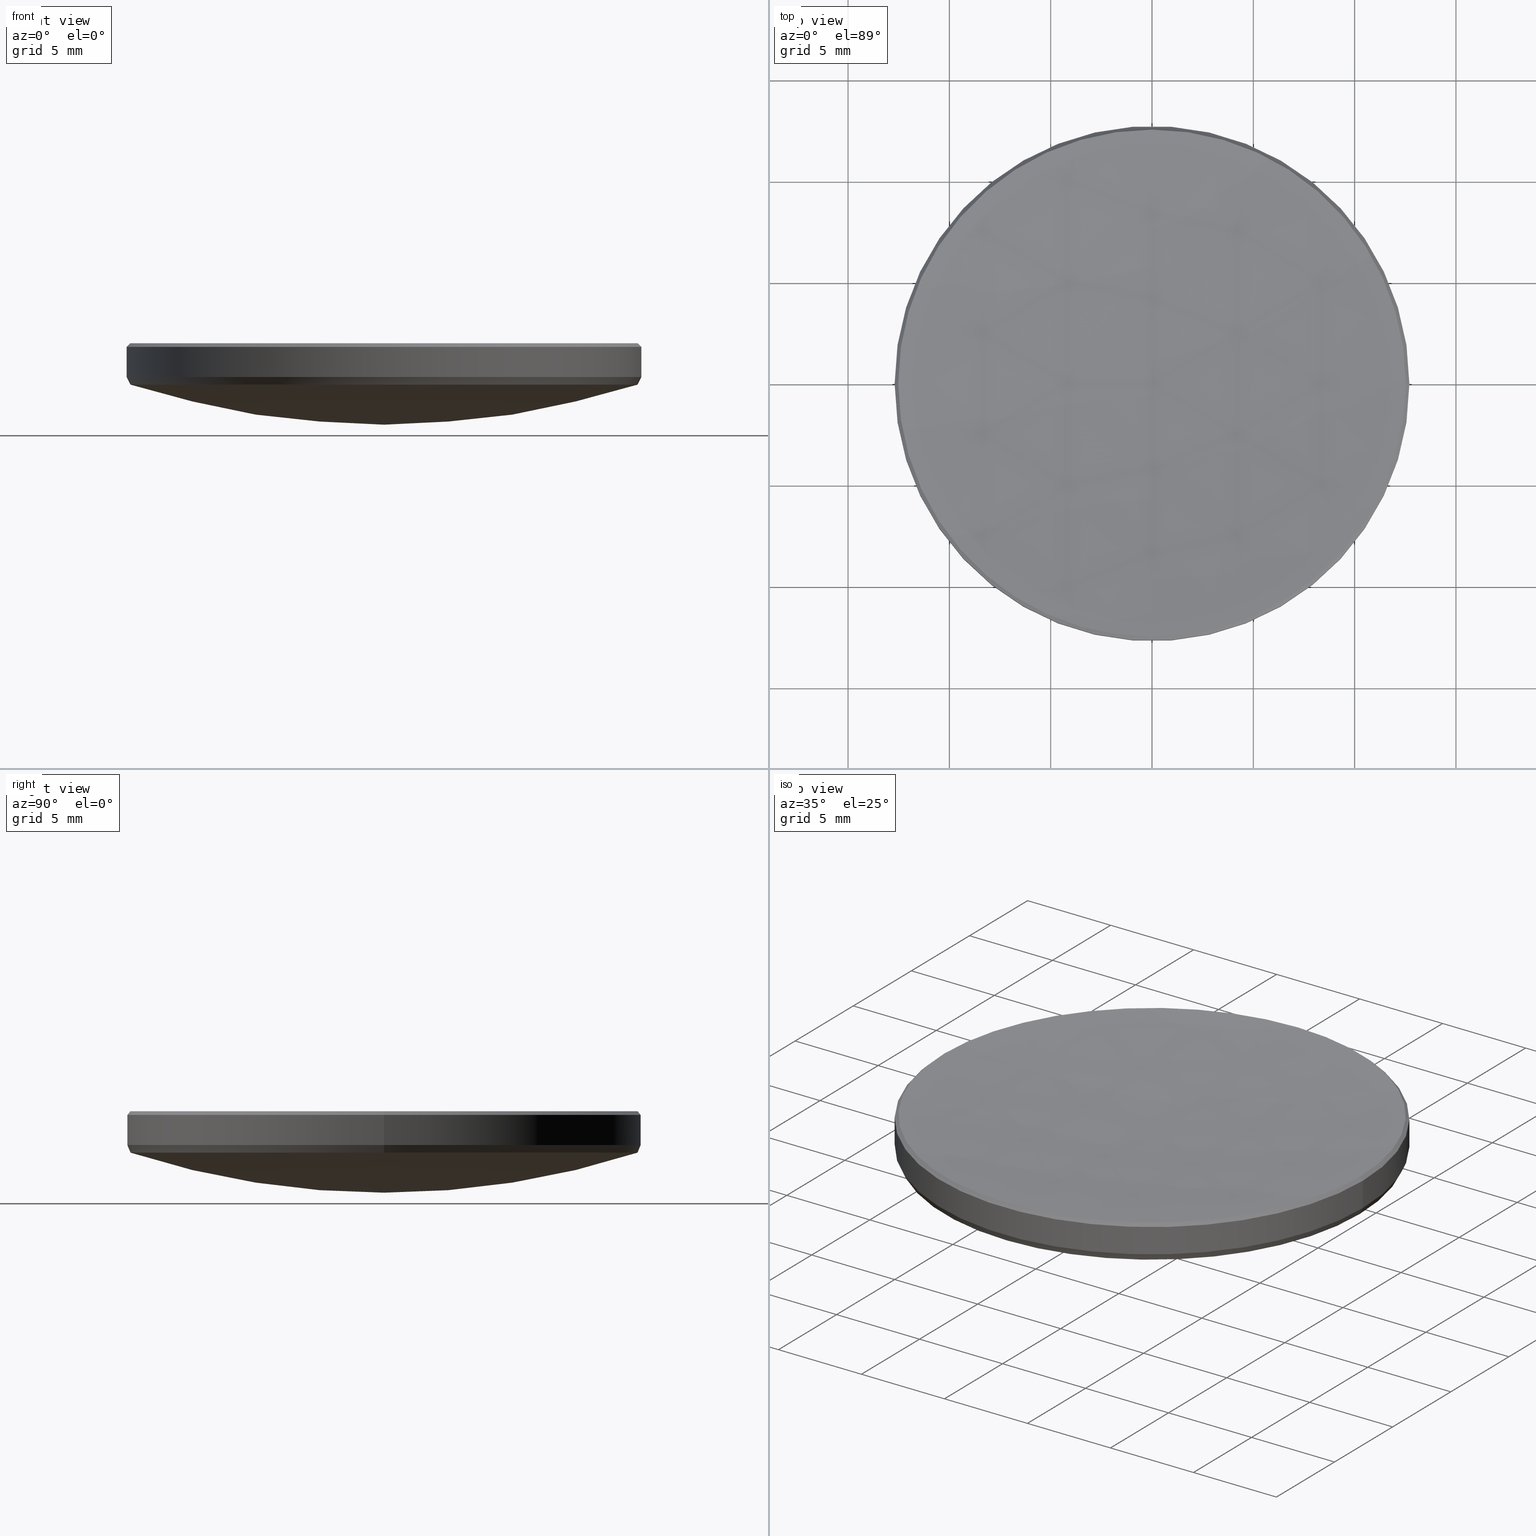
[diagram: canonical four-view strip — front | top / right | iso, engineering-drawing reading convention]
A machine part, canonical four-view strip (front | top / right | iso — engineering-drawing reading convention). The complete STEP part file that produces these views, byte-faithful:
ISO-10303-21;
HEADER;
FILE_DESCRIPTION (( 'STEP AP214' ),
    '1' );
FILE_NAME ('GLM1-025B-125-VIS.STEP',
    '2024-08-09T02:14:15',
    ( 'Windows User' ),
    ( 'P R C' ),
    'SwSTEP 2.0',
    'SolidWorks 2022',
    '' );
FILE_SCHEMA (( 'AUTOMOTIVE_DESIGN' ));
ENDSEC;

DATA;
#1 =( GEOMETRIC_REPRESENTATION_CONTEXT ( 3 ) GLOBAL_UNCERTAINTY_ASSIGNED_CONTEXT ( ( #16 ) ) GLOBAL_UNIT_ASSIGNED_CONTEXT ( ( #277, #194, #79 ) ) REPRESENTATION_CONTEXT ( 'NONE', 'WORKASPACE' ) );
#2 = AXIS2_PLACEMENT_3D ( 'NONE', #77, #32, #174 ) ;
#3 =( NAMED_UNIT ( * ) SI_UNIT ( $, .STERADIAN. ) SOLID_ANGLE_UNIT ( ) );
#4 = SPHERICAL_SURFACE ( 'NONE', #105, 40.59999999999999432 ) ;
#5 = EDGE_CURVE ( 'NONE', #307, #19, #41, .T. ) ;
#6 = LINE ( 'NONE', #237, #244 ) ;
#7 = EDGE_CURVE ( 'NONE', #19, #51, #205, .T. ) ;
#8 = CARTESIAN_POINT ( 'NONE',  ( 0.000000000000000000, 0.000000000000000000, 112.1429225148808655 ) ) ;
#9 = DIRECTION ( 'NONE',  ( 0.000000000000000000, 1.000000000000000000, 0.000000000000000000 ) ) ;
#10 = AXIS2_PLACEMENT_3D ( 'NONE', #137, #64, #87 ) ;
#11 = COLOUR_RGB ( '',1.000000000000000000, 1.000000000000000000, 1.000000000000000000 ) ;
#12 = FACE_OUTER_BOUND ( 'NONE', #300, .T. ) ;
#13 = DIRECTION ( 'NONE',  ( -1.224646799147353454E-16, -1.000000000000000000, 0.000000000000000000 ) ) ;
#14 = FILL_AREA_STYLE_COLOUR ( '', #11 ) ;
#15 = AXIS2_PLACEMENT_3D ( 'NONE', #266, #314, #13 ) ;
#16 = UNCERTAINTY_MEASURE_WITH_UNIT (LENGTH_MEASURE( 1.000000000000000082E-05 ), #277, 'distance_accuracy_value', 'NONE');
#17 = ORIENTED_EDGE ( 'NONE', *, *, #90, .T. ) ;
#18 = AXIS2_PLACEMENT_3D ( 'NONE', #132, #101, #285 ) ;
#19 = VERTEX_POINT ( 'NONE', #154 ) ;
#20 = ORIENTED_EDGE ( 'NONE', *, *, #243, .T. ) ;
#21 = CONICAL_SURFACE ( 'NONE', #323, 12.52123640383887881, 0.7853981633974531640 ) ;
#22 = ORIENTED_EDGE ( 'NONE', *, *, #269, .T. ) ;
#23 = EDGE_CURVE ( 'NONE', #273, #49, #72, .T. ) ;
#24 = FACE_OUTER_BOUND ( 'NONE', #45, .T. ) ;
#25 = EDGE_LOOP ( 'NONE', ( #217, #131, #218, #331, #202 ) ) ;
#26 = DIRECTION ( 'NONE',  ( 1.000000000000000000, 0.000000000000000000, 0.000000000000000000 ) ) ;
#27 = DIRECTION ( 'NONE',  ( -0.000000000000000000, -0.000000000000000000, 1.000000000000000000 ) ) ;
#28 = CIRCLE ( 'NONE', #225, 106.9000000000000057 ) ;
#29 = APPLICATION_PROTOCOL_DEFINITION ( 'draft international standard', 'automotive_design', 1998, #170 ) ;
#30 = CIRCLE ( 'NONE', #272, 12.52123640383887704 ) ;
#31 = CARTESIAN_POINT ( 'NONE',  ( 0.000000000000000000, 0.000000000000000000, 5.799999999999999822 ) ) ;
#32 = DIRECTION ( 'NONE',  ( 0.000000000000000000, 0.000000000000000000, -1.000000000000000000 ) ) ;
#33 =( NAMED_UNIT ( * ) PLANE_ANGLE_UNIT ( ) SI_UNIT ( $, .RADIAN. ) );
#34 = ADVANCED_FACE ( 'NONE', ( #127 ), #283, .T. ) ;
#35 = DIRECTION ( 'NONE',  ( -0.000000000000000000, -0.000000000000000000, -1.000000000000000000 ) ) ;
#36 = FILL_AREA_STYLE ('',( #263 ) ) ;
#37 = LINE ( 'NONE', #292, #286 ) ;
#38 = DIRECTION ( 'NONE',  ( -1.000000000000000000, 0.000000000000000000, 0.000000000000000000 ) ) ;
#39 = DIRECTION ( 'NONE',  ( 1.000000000000000000, 0.000000000000000000, 0.000000000000000000 ) ) ;
#40 = CARTESIAN_POINT ( 'NONE',  ( 0.000000000000000000, 0.000000000000000000, 5.978763596161104310 ) ) ;
#41 = LINE ( 'NONE', #121, #312 ) ;
#42 = AXIS2_PLACEMENT_3D ( 'NONE', #267, #235, #69 ) ;
#43 = ADVANCED_FACE ( 'NONE', ( #24 ), #21, .T. ) ;
#44 = ORIENTED_EDGE ( 'NONE', *, *, #149, .F. ) ;
#45 = EDGE_LOOP ( 'NONE', ( #147, #311, #104, #270, #44 ) ) ;
#46 = APPLICATION_PROTOCOL_DEFINITION ( 'draft international standard', 'automotive_design', 1998, #75 ) ;
#47 = STYLED_ITEM ( 'NONE', ( #96 ), #76 ) ;
#48 = COLOUR_RGB ( '',1.000000000000000000, 1.000000000000000000, 1.000000000000000000 ) ;
#49 = VERTEX_POINT ( 'NONE', #306 ) ;
#50 = EDGE_CURVE ( 'NONE', #71, #295, #179, .T. ) ;
#51 = VERTEX_POINT ( 'NONE', #129 ) ;
#52 = CARTESIAN_POINT ( 'NONE',  ( 0.000000000000000000, 0.000000000000000000, 3.938057364562333351 ) ) ;
#53 = CARTESIAN_POINT ( 'NONE',  ( 0.000000000000000000, 0.000000000000000000, 5.978763596161104310 ) ) ;
#54 = VERTEX_POINT ( 'NONE', #175 ) ;
#55 = CARTESIAN_POINT ( 'NONE',  ( 0.000000000000000000, 0.000000000000000000, 0.000000000000000000 ) ) ;
#56 = CARTESIAN_POINT ( 'NONE',  ( 12.69999999999999929, 0.000000000000000000, 4.313967534857077624 ) ) ;
#57 = CARTESIAN_POINT ( 'NONE',  ( 0.000000000000000000, 12.52123640383880421, 5.978763596161098093 ) ) ;
#58 = DIRECTION ( 'NONE',  ( 1.000000000000000000, 0.000000000000000000, 0.000000000000000000 ) ) ;
#59 = DIRECTION ( 'NONE',  ( 1.000000000000000000, 0.000000000000000000, 0.000000000000000000 ) ) ;
#60 = EDGE_CURVE ( 'NONE', #295, #146, #228, .T. ) ;
#61 = CONICAL_SURFACE ( 'NONE', #182, 12.69999999999999929, 0.4672503280471582698 ) ;
#62 = CARTESIAN_POINT ( 'NONE',  ( -12.51034897911231170, 1.543688659132881617E-15, 3.938057364562333351 ) ) ;
#63 = AXIS2_PLACEMENT_3D ( 'NONE', #81, #199, #108 ) ;
#64 = DIRECTION ( 'NONE',  ( 1.000000000000000000, -0.000000000000000000, 0.000000000000000000 ) ) ;
#65 = DIRECTION ( 'NONE',  ( 0.000000000000000000, 0.000000000000000000, -1.000000000000000000 ) ) ;
#66 =( GEOMETRIC_REPRESENTATION_CONTEXT ( 3 ) GLOBAL_UNCERTAINTY_ASSIGNED_CONTEXT ( ( #143 ) ) GLOBAL_UNIT_ASSIGNED_CONTEXT ( ( #133, #33, #3 ) ) REPRESENTATION_CONTEXT ( 'NONE', 'WORKASPACE' ) );
#67 = DIRECTION ( 'NONE',  ( -1.224646799147353207E-16, -1.000000000000000000, 0.000000000000000000 ) ) ;
#68 = CARTESIAN_POINT ( 'NONE',  ( -1.533409208332850696E-15, -12.52123640383880421, 5.978763596161098093 ) ) ;
#69 = DIRECTION ( 'NONE',  ( 1.000000000000000000, 0.000000000000000000, 0.000000000000000000 ) ) ;
#70 = ORIENTED_EDGE ( 'NONE', *, *, #304, .F. ) ;
#71 = VERTEX_POINT ( 'NONE', #57 ) ;
#72 = CIRCLE ( 'NONE', #84, 12.52123640383887704 ) ;
#73 = ORIENTED_EDGE ( 'NONE', *, *, #304, .T. ) ;
#74 = ORIENTED_EDGE ( 'NONE', *, *, #207, .T. ) ;
#75 = APPLICATION_CONTEXT ( 'automotive_design' ) ;
#76 = ADVANCED_BREP_SHAPE_REPRESENTATION ( 'GLM1-025B-125-VIS', ( #134, #186 ), #114 ) ;
#77 = CARTESIAN_POINT ( 'NONE',  ( 0.000000000000000000, 0.000000000000000000, 5.799999999999999822 ) ) ;
#78 = DIRECTION ( 'NONE',  ( -1.000000000000000000, 0.000000000000000000, 0.000000000000000000 ) ) ;
#79 =( NAMED_UNIT ( * ) SI_UNIT ( $, .STERADIAN. ) SOLID_ANGLE_UNIT ( ) );
#80 = CIRCLE ( 'NONE', #63, 12.51034897911231170 ) ;
#81 = CARTESIAN_POINT ( 'NONE',  ( 0.000000000000000000, 0.000000000000000000, 3.938057364562333351 ) ) ;
#82 = CARTESIAN_POINT ( 'NONE',  ( 0.000000000000000000, 0.000000000000000000, 5.978763596161118521 ) ) ;
#83 = FACE_OUTER_BOUND ( 'NONE', #246, .T. ) ;
#84 = AXIS2_PLACEMENT_3D ( 'NONE', #53, #177, #255 ) ;
#85 = CARTESIAN_POINT ( 'NONE',  ( 0.000000000000000000, 0.000000000000000000, 42.56254659640620730 ) ) ;
#86 = CARTESIAN_POINT ( 'NONE',  ( 0.000000000000000000, 0.000000000000000000, 3.938057364562333351 ) ) ;
#87 = DIRECTION ( 'NONE',  ( 0.000000000000000000, 0.000000000000000000, -1.000000000000000000 ) ) ;
#88 = SURFACE_SIDE_STYLE ('',( #213 ) ) ;
#89 = ADVANCED_FACE ( 'NONE', ( #310 ), #112, .T. ) ;
#90 = EDGE_CURVE ( 'NONE', #91, #198, #258, .T. ) ;
#91 = VERTEX_POINT ( 'NONE', #318 ) ;
#92 = ADVANCED_FACE ( 'NONE', ( #135 ), #183, .F. ) ;
#93 = ORIENTED_EDGE ( 'NONE', *, *, #118, .T. ) ;
#94 = ORIENTED_EDGE ( 'NONE', *, *, #294, .F. ) ;
#95 = ORIENTED_EDGE ( 'NONE', *, *, #90, .F. ) ;
#96 = PRESENTATION_STYLE_ASSIGNMENT (( #257 ) ) ;
#97 = DIRECTION ( 'NONE',  ( 1.000000000000000000, 0.000000000000000000, 0.000000000000000000 ) ) ;
#98 = AXIS2_PLACEMENT_3D ( 'NONE', #31, #178, #58 ) ;
#99 = ORIENTED_EDGE ( 'NONE', *, *, #206, .F. ) ;
#100 = PRODUCT_DEFINITION ( 'δ֪', '', #232, #241 ) ;
#101 = DIRECTION ( 'NONE',  ( -0.000000000000000000, -0.000000000000000000, -1.000000000000000000 ) ) ;
#102 = DIRECTION ( 'NONE',  ( -0.7071067811865510144, 0.000000000000000000, -0.7071067811865441310 ) ) ;
#103 = UNCERTAINTY_MEASURE_WITH_UNIT (LENGTH_MEASURE( 1.000000000000000082E-05 ), #320, 'distance_accuracy_value', 'NONE');
#104 = ORIENTED_EDGE ( 'NONE', *, *, #303, .F. ) ;
#105 = AXIS2_PLACEMENT_3D ( 'NONE', #85, #284, #231 ) ;
#106 = CARTESIAN_POINT ( 'NONE',  ( -12.69999999999999929, 0.000000000000000000, 5.799999999999999822 ) ) ;
#107 = ADVANCED_FACE ( 'NONE', ( #139 ), #265, .F. ) ;
#108 = DIRECTION ( 'NONE',  ( 1.000000000000000000, 0.000000000000000000, 0.000000000000000000 ) ) ;
#109 = CARTESIAN_POINT ( 'NONE',  ( 0.000000000000000000, 0.000000000000000000, 4.313967534857077624 ) ) ;
#110 = CARTESIAN_POINT ( 'NONE',  ( 0.000000000000000000, 0.000000000000000000, 112.1429225148808655 ) ) ;
#111 = DIRECTION ( 'NONE',  ( 0.7071067811865510144, 8.659560562354975999E-17, -0.7071067811865441310 ) ) ;
#112 = CONICAL_SURFACE ( 'NONE', #297, 12.52123640383887881, 0.7853981633974531640 ) ;
#113 = AXIS2_PLACEMENT_3D ( 'NONE', #8, #236, #291 ) ;
#114 =( GEOMETRIC_REPRESENTATION_CONTEXT ( 3 ) GLOBAL_UNCERTAINTY_ASSIGNED_CONTEXT ( ( #103 ) ) GLOBAL_UNIT_ASSIGNED_CONTEXT ( ( #320, #288, #215 ) ) REPRESENTATION_CONTEXT ( 'NONE', 'WORKASPACE' ) );
#115 = DIRECTION ( 'NONE',  ( 0.000000000000000000, 0.000000000000000000, -1.000000000000000000 ) ) ;
#116 = DIRECTION ( 'NONE',  ( 1.000000000000000000, 0.000000000000000000, 0.000000000000000000 ) ) ;
#117 = FACE_OUTER_BOUND ( 'NONE', #25, .T. ) ;
#118 = EDGE_CURVE ( 'NONE', #193, #273, #28, .T. ) ;
#119 = FILL_AREA_STYLE ('',( #14 ) ) ;
#120 = PRODUCT_RELATED_PRODUCT_CATEGORY ( 'part', '', ( #229 ) ) ;
#121 = CARTESIAN_POINT ( 'NONE',  ( -12.69999999999999929, 1.555301434917138433E-15, 4.313967534857077624 ) ) ;
#122 = CIRCLE ( 'NONE', #309, 106.9000000000000057 ) ;
#123 = DIRECTION ( 'NONE',  ( -0.4504330560855231425, 5.516214003652961775E-17, 0.8928102049066508616 ) ) ;
#124 = ORIENTED_EDGE ( 'NONE', *, *, #60, .F. ) ;
#125 = VECTOR ( 'NONE', #102, 1000.000000000000000 ) ;
#126 = EDGE_LOOP ( 'NONE', ( #70, #20, #274, #124, #321 ) ) ;
#127 = FACE_OUTER_BOUND ( 'NONE', #324, .T. ) ;
#128 = FACE_OUTER_BOUND ( 'NONE', #254, .T. ) ;
#129 = CARTESIAN_POINT ( 'NONE',  ( 12.69999999999999929, 1.555301434917138433E-15, 4.313967534857077624 ) ) ;
#130 = CIRCLE ( 'NONE', #316, 12.51034897911231170 ) ;
#131 = ORIENTED_EDGE ( 'NONE', *, *, #5, .T. ) ;
#132 = CARTESIAN_POINT ( 'NONE',  ( 0.000000000000000000, 0.000000000000000000, 10.00000000000000000 ) ) ;
#133 =( LENGTH_UNIT ( ) NAMED_UNIT ( * ) SI_UNIT ( .MILLI., .METRE. ) );
#134 = MANIFOLD_SOLID_BREP ( '����1', #158 ) ;
#135 = FACE_OUTER_BOUND ( 'NONE', #168, .T. ) ;
#136 = DIRECTION ( 'NONE',  ( -0.000000000000000000, -0.000000000000000000, 1.000000000000000000 ) ) ;
#137 = CARTESIAN_POINT ( 'NONE',  ( 0.000000000000000000, 0.000000000000000000, 42.56254659640620730 ) ) ;
#138 = AXIS2_PLACEMENT_3D ( 'NONE', #159, #27, #151 ) ;
#139 = FACE_OUTER_BOUND ( 'NONE', #230, .T. ) ;
#140 = CARTESIAN_POINT ( 'NONE',  ( 0.000000000000000000, 0.000000000000000000, 42.56254659640620730 ) ) ;
#141 = ADVANCED_FACE ( 'NONE', ( #83 ), #305, .T. ) ;
#142 = LINE ( 'NONE', #164, #299 ) ;
#143 = UNCERTAINTY_MEASURE_WITH_UNIT (LENGTH_MEASURE( 1.000000000000000082E-05 ), #133, 'distance_accuracy_value', 'NONE');
#144 = ORIENTED_EDGE ( 'NONE', *, *, #23, .T. ) ;
#145 = AXIS2_PLACEMENT_3D ( 'NONE', #140, #319, #9 ) ;
#146 = VERTEX_POINT ( 'NONE', #106 ) ;
#147 = ORIENTED_EDGE ( 'NONE', *, *, #243, .F. ) ;
#148 = ORIENTED_EDGE ( 'NONE', *, *, #118, .F. ) ;
#149 = EDGE_CURVE ( 'NONE', #169, #146, #248, .T. ) ;
#150 = EDGE_CURVE ( 'NONE', #307, #198, #289, .T. ) ;
#151 = DIRECTION ( 'NONE',  ( 1.000000000000000000, 0.000000000000000000, 0.000000000000000000 ) ) ;
#152 = DIRECTION ( 'NONE',  ( 0.000000000000000000, 0.000000000000000000, 1.000000000000000000 ) ) ;
#153 = DIRECTION ( 'NONE',  ( 0.000000000000000000, 0.000000000000000000, -1.000000000000000000 ) ) ;
#154 = CARTESIAN_POINT ( 'NONE',  ( -12.69999999999999929, 0.000000000000000000, 4.313967534857077624 ) ) ;
#155 = ORIENTED_EDGE ( 'NONE', *, *, #181, .T. ) ;
#156 = DIRECTION ( 'NONE',  ( 1.000000000000000000, 0.000000000000000000, 0.000000000000000000 ) ) ;
#157 = FACE_OUTER_BOUND ( 'NONE', #221, .T. ) ;
#158 = CLOSED_SHELL ( 'NONE', ( #89, #293, #107, #302, #141, #173, #208, #92, #34, #43 ) ) ;
#159 = CARTESIAN_POINT ( 'NONE',  ( 0.000000000000000000, 0.000000000000000000, 4.313967534857077624 ) ) ;
#160 = CARTESIAN_POINT ( 'NONE',  ( 0.000000000000000000, 0.000000000000000000, 4.313967534857077624 ) ) ;
#161 = CARTESIAN_POINT ( 'NONE',  ( 0.000000000000000000, 12.51034897911230992, 3.938057364562333351 ) ) ;
#162 = EDGE_CURVE ( 'NONE', #276, #54, #219, .T. ) ;
#163 = DIRECTION ( 'NONE',  ( -1.000000000000000000, 1.224646799147353207E-16, 0.000000000000000000 ) ) ;
#164 = CARTESIAN_POINT ( 'NONE',  ( 12.52123640383887881, 1.533409208332859768E-15, 5.978763596161118521 ) ) ;
#165 = DIRECTION ( 'NONE',  ( -1.000000000000000000, 0.000000000000000000, 0.000000000000000000 ) ) ;
#166 = AXIS2_PLACEMENT_3D ( 'NONE', #253, #197, #78 ) ;
#167 = DIRECTION ( 'NONE',  ( -0.000000000000000000, -0.000000000000000000, 1.000000000000000000 ) ) ;
#168 = EDGE_LOOP ( 'NONE', ( #148, #322, #245, #256 ) ) ;
#169 = VERTEX_POINT ( 'NONE', #204 ) ;
#170 = APPLICATION_CONTEXT ( 'automotive_design' ) ;
#171 = ORIENTED_EDGE ( 'NONE', *, *, #7, .F. ) ;
#172 = ORIENTED_EDGE ( 'NONE', *, *, #239, .T. ) ;
#173 = ADVANCED_FACE ( 'NONE', ( #128 ), #226, .T. ) ;
#174 = DIRECTION ( 'NONE',  ( 1.000000000000000000, 0.000000000000000000, 0.000000000000000000 ) ) ;
#175 = CARTESIAN_POINT ( 'NONE',  ( -1.532075883348624801E-15, -12.51034897911230992, 3.938057364562333351 ) ) ;
#176 = CARTESIAN_POINT ( 'NONE',  ( 0.000000000000000000, 0.000000000000000000, 112.1429225148808655 ) ) ;
#177 = DIRECTION ( 'NONE',  ( -0.000000000000000000, -0.000000000000000000, 1.000000000000000000 ) ) ;
#178 = DIRECTION ( 'NONE',  ( 0.000000000000000000, 0.000000000000000000, -1.000000000000000000 ) ) ;
#179 = CIRCLE ( 'NONE', #264, 12.52123640383887704 ) ;
#180 = DIRECTION ( 'NONE',  ( -0.000000000000000000, -0.000000000000000000, -1.000000000000000000 ) ) ;
#181 = EDGE_CURVE ( 'NONE', #54, #307, #80, .T. ) ;
#182 = AXIS2_PLACEMENT_3D ( 'NONE', #109, #167, #39 ) ;
#183 = SPHERICAL_SURFACE ( 'NONE', #113, 106.9000000000000057 ) ;
#184 = CARTESIAN_POINT ( 'NONE',  ( -12.52123640383887704, 0.000000000000000000, 5.978763596161104310 ) ) ;
#185 = SURFACE_STYLE_USAGE ( .BOTH. , #88 ) ;
#186 = AXIS2_PLACEMENT_3D ( 'NONE', #55, #152, #156 ) ;
#187 = MECHANICAL_DESIGN_GEOMETRIC_PRESENTATION_REPRESENTATION (  '', ( #290 ), #66 ) ;
#188 = ORIENTED_EDGE ( 'NONE', *, *, #181, .F. ) ;
#189 = ORIENTED_EDGE ( 'NONE', *, *, #149, .T. ) ;
#190 = ORIENTED_EDGE ( 'NONE', *, *, #294, .T. ) ;
#191 = AXIS2_PLACEMENT_3D ( 'NONE', #160, #259, #165 ) ;
#192 = ORIENTED_EDGE ( 'NONE', *, *, #242, .T. ) ;
#193 = VERTEX_POINT ( 'NONE', #308 ) ;
#194 =( NAMED_UNIT ( * ) PLANE_ANGLE_UNIT ( ) SI_UNIT ( $, .RADIAN. ) );
#195 = CARTESIAN_POINT ( 'NONE',  ( 0.000000000000000000, 0.000000000000000000, 10.00000000000000000 ) ) ;
#196 = CIRCLE ( 'NONE', #191, 12.69999999999999929 ) ;
#197 = DIRECTION ( 'NONE',  ( -0.000000000000000000, -0.000000000000000000, 1.000000000000000000 ) ) ;
#198 = VERTEX_POINT ( 'NONE', #161 ) ;
#199 = DIRECTION ( 'NONE',  ( 0.000000000000000000, 0.000000000000000000, -1.000000000000000000 ) ) ;
#200 = CARTESIAN_POINT ( 'NONE',  ( 0.000000000000000000, 0.000000000000000000, 5.978763596161118521 ) ) ;
#201 = AXIS2_PLACEMENT_3D ( 'NONE', #233, #278, #59 ) ;
#202 = ORIENTED_EDGE ( 'NONE', *, *, #326, .F. ) ;
#203 = AXIS2_PLACEMENT_3D ( 'NONE', #195, #180, #327 ) ;
#204 = CARTESIAN_POINT ( 'NONE',  ( 12.69999999999999929, 1.555301434917138433E-15, 5.799999999999999822 ) ) ;
#205 = CIRCLE ( 'NONE', #166, 12.69999999999999929 ) ;
#206 = EDGE_CURVE ( 'NONE', #193, #71, #122, .T. ) ;
#207 = EDGE_CURVE ( 'NONE', #276, #51, #281, .T. ) ;
#208 = ADVANCED_FACE ( 'NONE', ( #157 ), #4, .T. ) ;
#209 = CARTESIAN_POINT ( 'NONE',  ( 12.51034897911231170, 0.000000000000000000, 3.938057364562333351 ) ) ;
#210 = CARTESIAN_POINT ( 'NONE',  ( 0.000000000000000000, 0.000000000000000000, 112.1429225148808655 ) ) ;
#211 = SPHERICAL_SURFACE ( 'NONE', #145, 40.59999999999999432 ) ;
#212 = CIRCLE ( 'NONE', #15, 40.59999999999999432 ) ;
#213 = SURFACE_STYLE_FILL_AREA ( #36 ) ;
#214 = PRESENTATION_LAYER_ASSIGNMENT (  '', '', ( #47 ) ) ;
#215 =( NAMED_UNIT ( * ) SI_UNIT ( $, .STERADIAN. ) SOLID_ANGLE_UNIT ( ) );
#216 = SURFACE_STYLE_FILL_AREA ( #119 ) ;
#217 = ORIENTED_EDGE ( 'NONE', *, *, #150, .F. ) ;
#218 = ORIENTED_EDGE ( 'NONE', *, *, #242, .F. ) ;
#219 = CIRCLE ( 'NONE', #262, 12.51034897911231170 ) ;
#220 = ORIENTED_EDGE ( 'NONE', *, *, #7, .T. ) ;
#221 = EDGE_LOOP ( 'NONE', ( #94, #17, #251, #296 ) ) ;
#222 = ORIENTED_EDGE ( 'NONE', *, *, #269, .F. ) ;
#223 = DIRECTION ( 'NONE',  ( -1.000000000000000000, 0.000000000000000000, 0.000000000000000000 ) ) ;
#224 = ORIENTED_EDGE ( 'NONE', *, *, #5, .F. ) ;
#225 = AXIS2_PLACEMENT_3D ( 'NONE', #210, #163, #67 ) ;
#226 = CYLINDRICAL_SURFACE ( 'NONE', #18, 12.69999999999999929 ) ;
#227 = CIRCLE ( 'NONE', #98, 12.69999999999999929 ) ;
#228 = LINE ( 'NONE', #330, #125 ) ;
#229 = PRODUCT ( 'GLM1-025B-125-VIS', 'GLM1-025B-125-VIS', '', ( #252 ) ) ;
#230 = EDGE_LOOP ( 'NONE', ( #99, #93, #144, #73 ) ) ;
#231 = DIRECTION ( 'NONE',  ( 0.000000000000000000, 1.000000000000000000, 0.000000000000000000 ) ) ;
#232 = PRODUCT_DEFINITION_FORMATION_WITH_SPECIFIED_SOURCE ( '�κ�', '', #229, .NOT_KNOWN. ) ;
#233 = CARTESIAN_POINT ( 'NONE',  ( 0.000000000000000000, 0.000000000000000000, 3.938057364562333351 ) ) ;
#234 = DIRECTION ( 'NONE',  ( 0.4504330560855231425, 0.000000000000000000, 0.8928102049066508616 ) ) ;
#235 = DIRECTION ( 'NONE',  ( -0.000000000000000000, -0.000000000000000000, 1.000000000000000000 ) ) ;
#236 = DIRECTION ( 'NONE',  ( -1.000000000000000000, 0.000000000000000000, 0.000000000000000000 ) ) ;
#237 = CARTESIAN_POINT ( 'NONE',  ( 12.69999999999999929, 1.555301434917138433E-15, 10.00000000000000000 ) ) ;
#238 = DIRECTION ( 'NONE',  ( -0.000000000000000000, -0.000000000000000000, -1.000000000000000000 ) ) ;
#239 = EDGE_CURVE ( 'NONE', #146, #169, #227, .T. ) ;
#240 = PRODUCT_DEFINITION_SHAPE ( 'NONE', 'NONE',  #100 ) ;
#241 = PRODUCT_DEFINITION_CONTEXT ( 'detailed design', #75, 'design' ) ;
#242 = EDGE_CURVE ( 'NONE', #51, #19, #196, .T. ) ;
#243 = EDGE_CURVE ( 'NONE', #49, #169, #142, .T. ) ;
#244 = VECTOR ( 'NONE', #35, 1000.000000000000000 ) ;
#245 = ORIENTED_EDGE ( 'NONE', *, *, #50, .T. ) ;
#246 = EDGE_LOOP ( 'NONE', ( #172, #22, #192, #280 ) ) ;
#247 = VECTOR ( 'NONE', #234, 1000.000000000000114 ) ;
#248 = CIRCLE ( 'NONE', #2, 12.69999999999999929 ) ;
#249 = ORIENTED_EDGE ( 'NONE', *, *, #162, .F. ) ;
#250 = SHAPE_DEFINITION_REPRESENTATION ( #240, #76 ) ;
#251 = ORIENTED_EDGE ( 'NONE', *, *, #326, .T. ) ;
#252 = PRODUCT_CONTEXT ( 'NONE', #170, 'mechanical' ) ;
#253 = CARTESIAN_POINT ( 'NONE',  ( 0.000000000000000000, 0.000000000000000000, 4.313967534857077624 ) ) ;
#254 = EDGE_LOOP ( 'NONE', ( #222, #189, #325, #220 ) ) ;
#255 = DIRECTION ( 'NONE',  ( 1.000000000000000000, 0.000000000000000000, 0.000000000000000000 ) ) ;
#256 = ORIENTED_EDGE ( 'NONE', *, *, #303, .T. ) ;
#257 = SURFACE_STYLE_USAGE ( .BOTH. , #261 ) ;
#258 = CIRCLE ( 'NONE', #10, 40.59999999999999432 ) ;
#259 = DIRECTION ( 'NONE',  ( -0.000000000000000000, -0.000000000000000000, 1.000000000000000000 ) ) ;
#260 = DIRECTION ( 'NONE',  ( 0.000000000000000000, 0.000000000000000000, -1.000000000000000000 ) ) ;
#261 = SURFACE_SIDE_STYLE ('',( #216 ) ) ;
#262 = AXIS2_PLACEMENT_3D ( 'NONE', #52, #153, #26 ) ;
#263 = FILL_AREA_STYLE_COLOUR ( '', #48 ) ;
#264 = AXIS2_PLACEMENT_3D ( 'NONE', #328, #282, #97 ) ;
#265 = SPHERICAL_SURFACE ( 'NONE', #271, 106.9000000000000057 ) ;
#266 = CARTESIAN_POINT ( 'NONE',  ( 0.000000000000000000, 0.000000000000000000, 42.56254659640620730 ) ) ;
#267 = CARTESIAN_POINT ( 'NONE',  ( 0.000000000000000000, 0.000000000000000000, 5.978763596161104310 ) ) ;
#268 = EDGE_CURVE ( 'NONE', #146, #19, #37, .T. ) ;
#269 = EDGE_CURVE ( 'NONE', #169, #51, #6, .T. ) ;
#270 = ORIENTED_EDGE ( 'NONE', *, *, #60, .T. ) ;
#271 = AXIS2_PLACEMENT_3D ( 'NONE', #110, #315, #287 ) ;
#272 = AXIS2_PLACEMENT_3D ( 'NONE', #40, #136, #317 ) ;
#273 = VERTEX_POINT ( 'NONE', #68 ) ;
#274 = ORIENTED_EDGE ( 'NONE', *, *, #239, .F. ) ;
#275 = PRESENTATION_LAYER_ASSIGNMENT (  '', '', ( #290 ) ) ;
#276 = VERTEX_POINT ( 'NONE', #209 ) ;
#277 =( LENGTH_UNIT ( ) NAMED_UNIT ( * ) SI_UNIT ( .MILLI., .METRE. ) );
#278 = DIRECTION ( 'NONE',  ( 0.000000000000000000, 0.000000000000000000, -1.000000000000000000 ) ) ;
#279 = DIRECTION ( 'NONE',  ( 0.000000000000000000, 0.000000000000000000, -1.000000000000000000 ) ) ;
#280 = ORIENTED_EDGE ( 'NONE', *, *, #268, .F. ) ;
#281 = LINE ( 'NONE', #56, #247 ) ;
#282 = DIRECTION ( 'NONE',  ( -0.000000000000000000, -0.000000000000000000, 1.000000000000000000 ) ) ;
#283 = CONICAL_SURFACE ( 'NONE', #138, 12.69999999999999929, 0.4672503280471582698 ) ;
#284 = DIRECTION ( 'NONE',  ( -1.000000000000000000, 0.000000000000000000, 0.000000000000000000 ) ) ;
#285 = DIRECTION ( 'NONE',  ( -1.000000000000000000, 0.000000000000000000, 0.000000000000000000 ) ) ;
#286 = VECTOR ( 'NONE', #238, 1000.000000000000000 ) ;
#287 = DIRECTION ( 'NONE',  ( 0.000000000000000000, 1.000000000000000000, 0.000000000000000000 ) ) ;
#288 =( NAMED_UNIT ( * ) PLANE_ANGLE_UNIT ( ) SI_UNIT ( $, .RADIAN. ) );
#289 = CIRCLE ( 'NONE', #201, 12.51034897911231170 ) ;
#290 = STYLED_ITEM ( 'NONE', ( #332 ), #134 ) ;
#291 = DIRECTION ( 'NONE',  ( 0.000000000000000000, 1.000000000000000000, 0.000000000000000000 ) ) ;
#292 = CARTESIAN_POINT ( 'NONE',  ( -12.69999999999999929, 0.000000000000000000, 10.00000000000000000 ) ) ;
#293 = ADVANCED_FACE ( 'NONE', ( #117 ), #61, .T. ) ;
#294 = EDGE_CURVE ( 'NONE', #91, #54, #212, .T. ) ;
#295 = VERTEX_POINT ( 'NONE', #184 ) ;
#296 = ORIENTED_EDGE ( 'NONE', *, *, #162, .T. ) ;
#297 = AXIS2_PLACEMENT_3D ( 'NONE', #200, #115, #38 ) ;
#298 = ORIENTED_EDGE ( 'NONE', *, *, #150, .T. ) ;
#299 = VECTOR ( 'NONE', #111, 1000.000000000000000 ) ;
#300 = EDGE_LOOP ( 'NONE', ( #95, #190, #155, #298 ) ) ;
#301 = MECHANICAL_DESIGN_GEOMETRIC_PRESENTATION_REPRESENTATION (  '', ( #47 ), #1 ) ;
#302 = ADVANCED_FACE ( 'NONE', ( #12 ), #211, .T. ) ;
#303 = EDGE_CURVE ( 'NONE', #295, #273, #329, .T. ) ;
#304 = EDGE_CURVE ( 'NONE', #49, #71, #30, .T. ) ;
#305 = CYLINDRICAL_SURFACE ( 'NONE', #203, 12.69999999999999929 ) ;
#306 = CARTESIAN_POINT ( 'NONE',  ( 12.52123640383887704, 1.544355321624999001E-15, 5.978763596161104310 ) ) ;
#307 = VERTEX_POINT ( 'NONE', #62 ) ;
#308 = CARTESIAN_POINT ( 'NONE',  ( 0.000000000000000000, 6.545737141442603608E-15, 5.242922514880857143 ) ) ;
#309 = AXIS2_PLACEMENT_3D ( 'NONE', #176, #313, #260 ) ;
#310 = FACE_OUTER_BOUND ( 'NONE', #126, .T. ) ;
#311 = ORIENTED_EDGE ( 'NONE', *, *, #23, .F. ) ;
#312 = VECTOR ( 'NONE', #123, 1000.000000000000114 ) ;
#313 = DIRECTION ( 'NONE',  ( 1.000000000000000000, 0.000000000000000000, 0.000000000000000000 ) ) ;
#314 = DIRECTION ( 'NONE',  ( -1.000000000000000000, 1.224646799147353207E-16, 0.000000000000000000 ) ) ;
#315 = DIRECTION ( 'NONE',  ( -1.000000000000000000, 0.000000000000000000, 0.000000000000000000 ) ) ;
#316 = AXIS2_PLACEMENT_3D ( 'NONE', #86, #65, #116 ) ;
#317 = DIRECTION ( 'NONE',  ( 1.000000000000000000, 0.000000000000000000, 0.000000000000000000 ) ) ;
#318 = CARTESIAN_POINT ( 'NONE',  ( 0.000000000000000000, 2.486033002269126979E-15, 1.962546596406211652 ) ) ;
#319 = DIRECTION ( 'NONE',  ( -1.000000000000000000, 0.000000000000000000, 0.000000000000000000 ) ) ;
#320 =( LENGTH_UNIT ( ) NAMED_UNIT ( * ) SI_UNIT ( .MILLI., .METRE. ) );
#321 = ORIENTED_EDGE ( 'NONE', *, *, #50, .F. ) ;
#322 = ORIENTED_EDGE ( 'NONE', *, *, #206, .T. ) ;
#323 = AXIS2_PLACEMENT_3D ( 'NONE', #82, #279, #223 ) ;
#324 = EDGE_LOOP ( 'NONE', ( #224, #188, #249, #74, #171 ) ) ;
#325 = ORIENTED_EDGE ( 'NONE', *, *, #268, .T. ) ;
#326 = EDGE_CURVE ( 'NONE', #198, #276, #130, .T. ) ;
#327 = DIRECTION ( 'NONE',  ( -1.000000000000000000, 0.000000000000000000, 0.000000000000000000 ) ) ;
#328 = CARTESIAN_POINT ( 'NONE',  ( 0.000000000000000000, 0.000000000000000000, 5.978763596161104310 ) ) ;
#329 = CIRCLE ( 'NONE', #42, 12.52123640383887704 ) ;
#330 = CARTESIAN_POINT ( 'NONE',  ( -12.52123640383887881, 0.000000000000000000, 5.978763596161118521 ) ) ;
#331 = ORIENTED_EDGE ( 'NONE', *, *, #207, .F. ) ;
#332 = PRESENTATION_STYLE_ASSIGNMENT (( #185 ) ) ;
ENDSEC;
END-ISO-10303-21;
